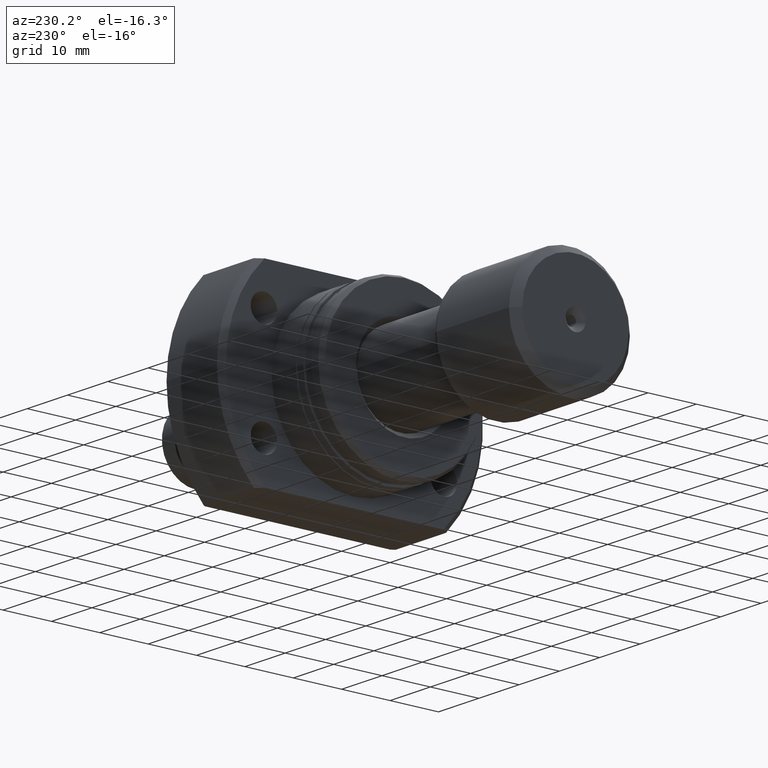
[diagram: clean part render]
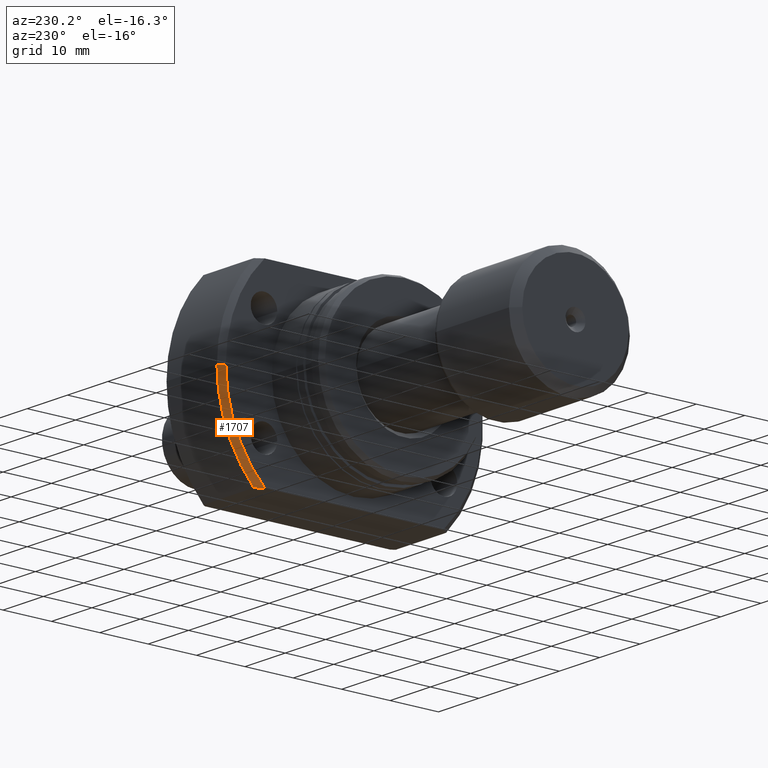
[diagram: same view with one face highlighted and labeled with its STEP entity id]
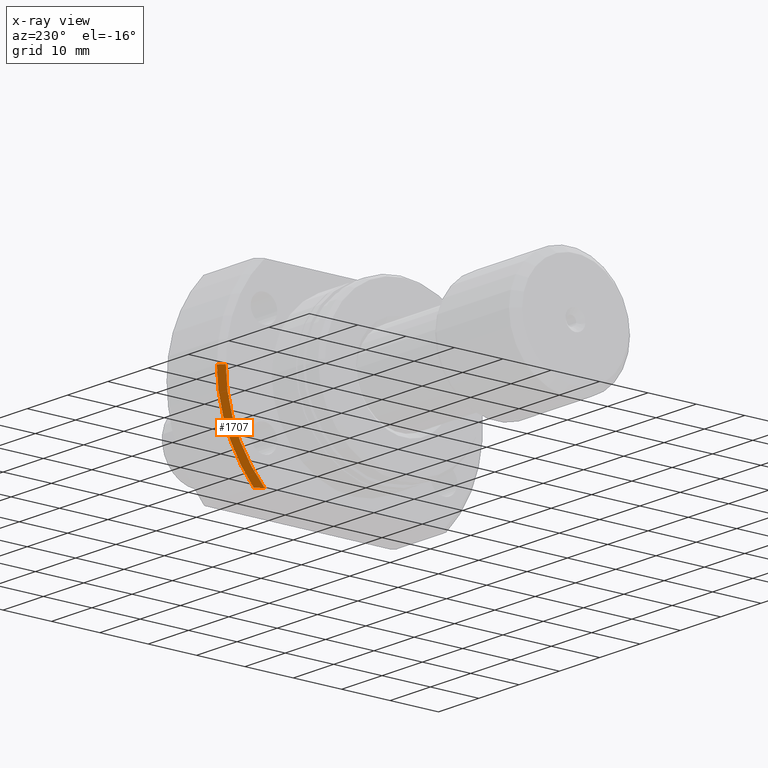
[diagram: x-ray of the same camera — body ghosted, the highlighted face saturated]
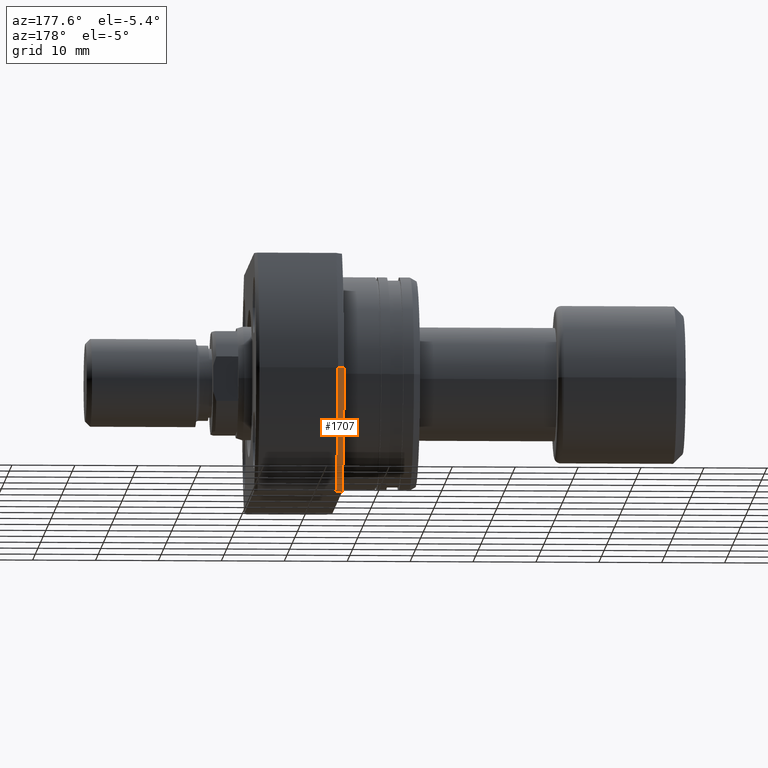
[diagram: same view with one face highlighted and labeled with its STEP entity id]
A machine part, auxiliary view. The second image highlights one B-rep face of the part: STEP entity #1707.
The next image is the same camera in x-ray: the body ghosted, the highlighted face saturated — about 0% of this face is hidden behind the body in this view.
A second angle (auxiliary view) of the same face is appended — the face is thin or edge-on in the first view.
In plain terms, the highlighted conical surface has half-angle 45 deg.
Its self-contained STEP definition (entity closure, byte-faithful):
#55 = EDGE_CURVE ( 'NONE', #3298, #2066, #2778, .T. ) ;
#127 = DIRECTION ( 'NONE',  ( 1.000000000000000000, 9.242617352055502386E-18, -0.000000000000000000 ) ) ;
#206 = CARTESIAN_POINT ( 'NONE',  ( 13.49999999999998757, 19.88089535207129543, -18.99999999999999645 ) ) ;
#263 = CARTESIAN_POINT ( 'NONE',  ( 13.16276636410033696, 19.41442114037127098, -19.00000000000001066 ) ) ;
#275 = ORIENTED_EDGE ( 'NONE', *, *, #3214, .T. ) ;
#307 = DIRECTION ( 'NONE',  ( 1.000000000000000000, 9.242617352055502386E-18, -0.000000000000000000 ) ) ;
#495 = EDGE_CURVE ( 'NONE', #3479, #1762, #3162, .T. ) ;
#525 = CARTESIAN_POINT ( 'NONE',  ( 13.49999999999998757, 19.88089535207129543, -18.99999999999999645 ) ) ;
#692 = VECTOR ( 'NONE', #3622, 1000.000000000000000 ) ;
#719 = DIRECTION ( 'NONE',  ( 0.000000000000000000, 1.000000000000000000, 0.000000000000000000 ) ) ;
#746 = CARTESIAN_POINT ( 'NONE',  ( 12.50000000000000355, 18.47295320191106072, -19.00000000000001066 ) ) ;
#846 = CARTESIAN_POINT ( 'NONE',  ( 13.49999999999999112, 1.247753342527491952E-16, 0.000000000000000000 ) ) ;
#1002 = FACE_OUTER_BOUND ( 'NONE', #1551, .T. ) ;
#1038 = CARTESIAN_POINT ( 'NONE',  ( 12.82923531929442440, 18.94525104546319128, -19.00000000000001066 ) ) ;
#1308 = AXIS2_PLACEMENT_3D ( 'NONE', #2393, #127, #719 ) ;
#1384 = DIRECTION ( 'NONE',  ( 1.000000000000000000, 9.242617352055502386E-18, -0.000000000000000000 ) ) ;
#1410 = EDGE_CURVE ( 'NONE', #3479, #2066, #2911, .T. ) ;
#1551 = EDGE_LOOP ( 'NONE', ( #275, #1927, #3311, #2358 ) ) ;
#1600 = AXIS2_PLACEMENT_3D ( 'NONE', #846, #1384, #2203 ) ;
#1707 = ADVANCED_FACE ( 'NONE', ( #1002 ), #2147, .T. ) ;
#1762 = VERTEX_POINT ( 'NONE', #2514 ) ;
#1803 = AXIS2_PLACEMENT_3D ( 'NONE', #2490, #307, #3422 ) ;
#1919 = CIRCLE ( 'NONE', #1803, 26.49999999999993250 ) ;
#1927 = ORIENTED_EDGE ( 'NONE', *, *, #55, .T. ) ;
#2066 = VERTEX_POINT ( 'NONE', #3533 ) ;
#2147 = CONICAL_SURFACE ( 'NONE', #1308, 26.49999999999993250, 0.7853981633974447263 ) ;
#2203 = DIRECTION ( 'NONE',  ( 0.000000000000000000, 1.000000000000000000, 0.000000000000000000 ) ) ;
#2358 = ORIENTED_EDGE ( 'NONE', *, *, #495, .T. ) ;
#2393 = CARTESIAN_POINT ( 'NONE',  ( 12.50000000000000355, 1.155327169006938207E-16, 0.000000000000000000 ) ) ;
#2490 = CARTESIAN_POINT ( 'NONE',  ( 12.50000000000000355, 1.155327169006938207E-16, 0.000000000000000000 ) ) ;
#2493 = CARTESIAN_POINT ( 'NONE',  ( 12.50000000000000355, 26.49999999999993250, 0.000000000000000000 ) ) ;
#2514 = CARTESIAN_POINT ( 'NONE',  ( 12.50000000000000355, 18.47295320191106072, -19.00000000000001066 ) ) ;
#2778 = LINE ( 'NONE', #2493, #692 ) ;
#2911 = CIRCLE ( 'NONE', #1600, 27.49999999999991473 ) ;
#3162 = B_SPLINE_CURVE_WITH_KNOTS ( 'NONE', 3,
 ( #206, #263, #1038, #746 ),
 .UNSPECIFIED., .F., .F.,
 ( 4, 4 ),
 ( 0.03128279945209441748, 0.03301205973984314840 ),
 .UNSPECIFIED. ) ;
#3214 = EDGE_CURVE ( 'NONE', #1762, #3298, #1919, .T. ) ;
#3298 = VERTEX_POINT ( 'NONE', #3439 ) ;
#3311 = ORIENTED_EDGE ( 'NONE', *, *, #1410, .F. ) ;
#3422 = DIRECTION ( 'NONE',  ( 0.000000000000000000, 1.000000000000000000, 0.000000000000000000 ) ) ;
#3439 = CARTESIAN_POINT ( 'NONE',  ( 12.50000000000000355, 26.49999999999993250, 0.000000000000000000 ) ) ;
#3479 = VERTEX_POINT ( 'NONE', #525 ) ;
#3533 = CARTESIAN_POINT ( 'NONE',  ( 13.49999999999999112, 27.49999999999991473, 0.000000000000000000 ) ) ;
#3622 = DIRECTION ( 'NONE',  ( 0.7071067811865500152, 0.7071067811865450192, 0.000000000000000000 ) ) ;